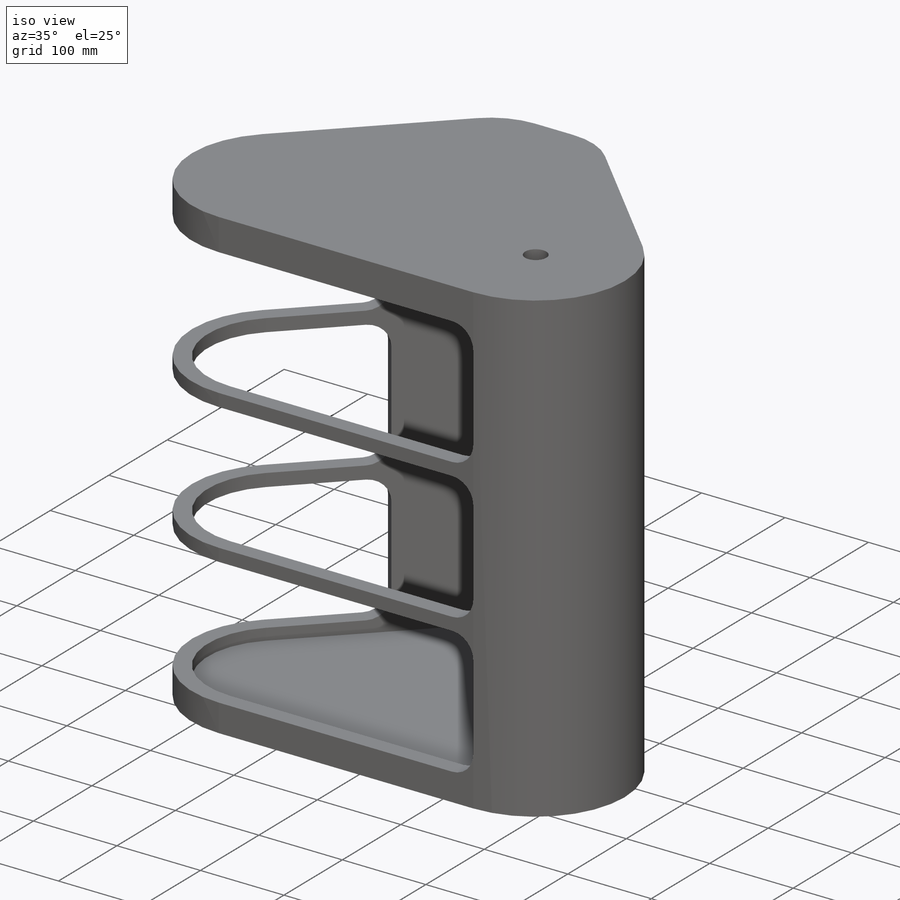
[diagram: iso view]
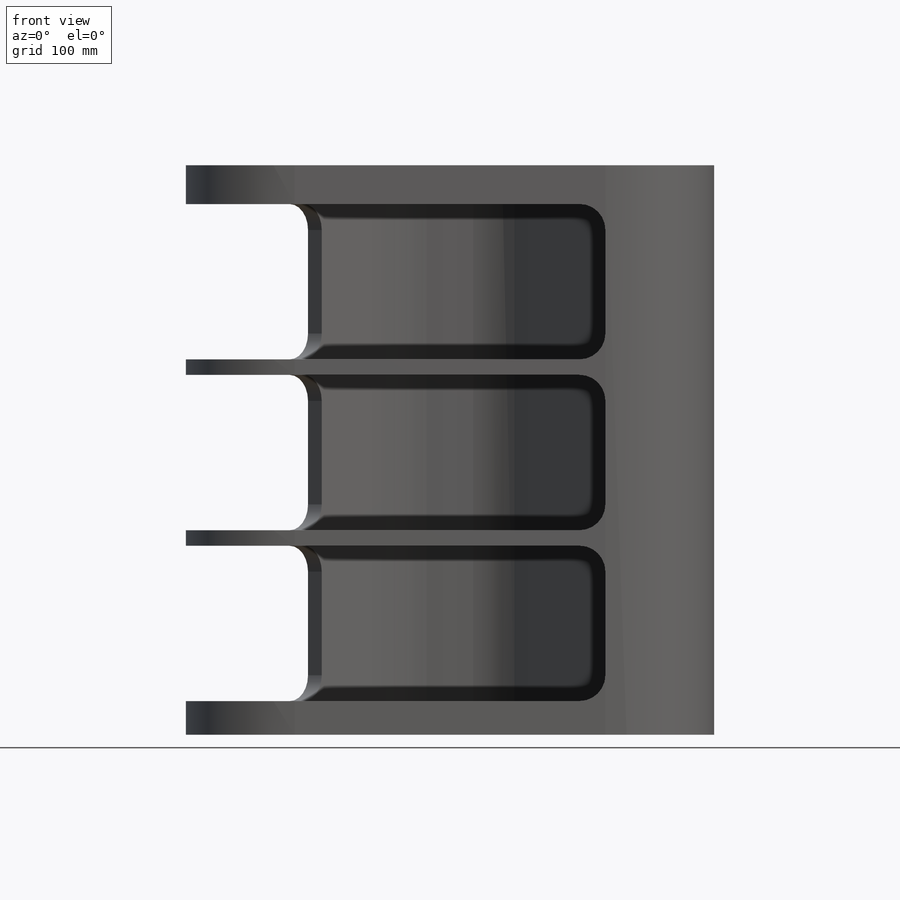
[diagram: front view]
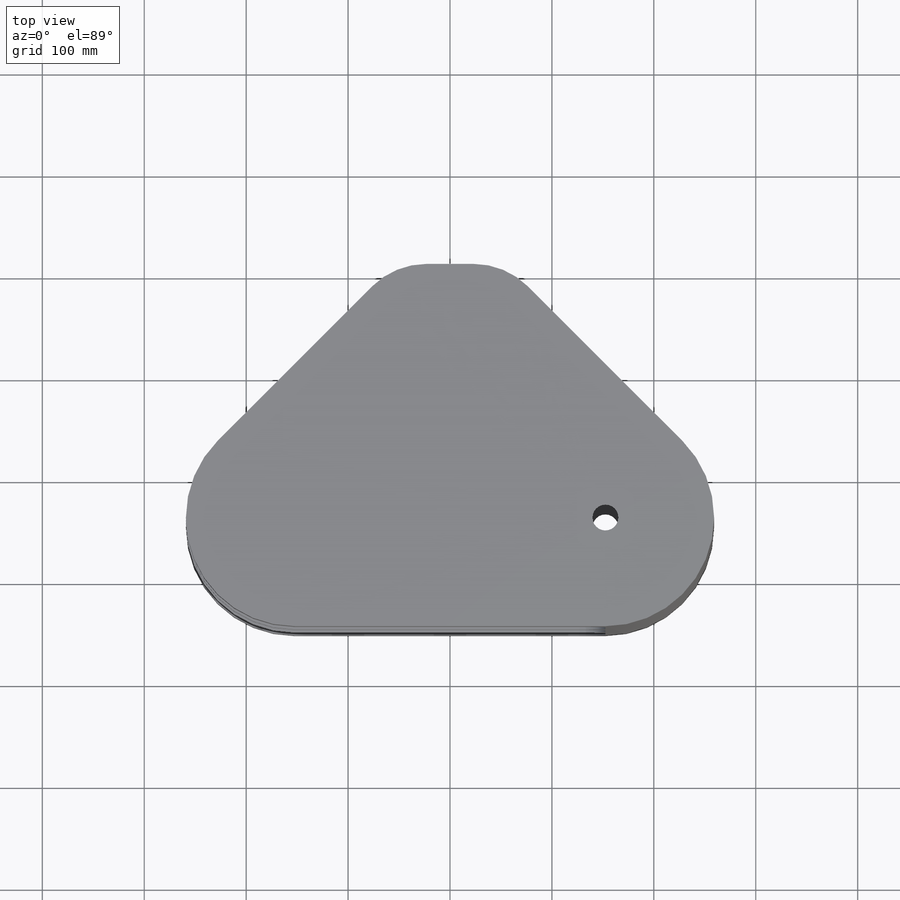
[diagram: top view]
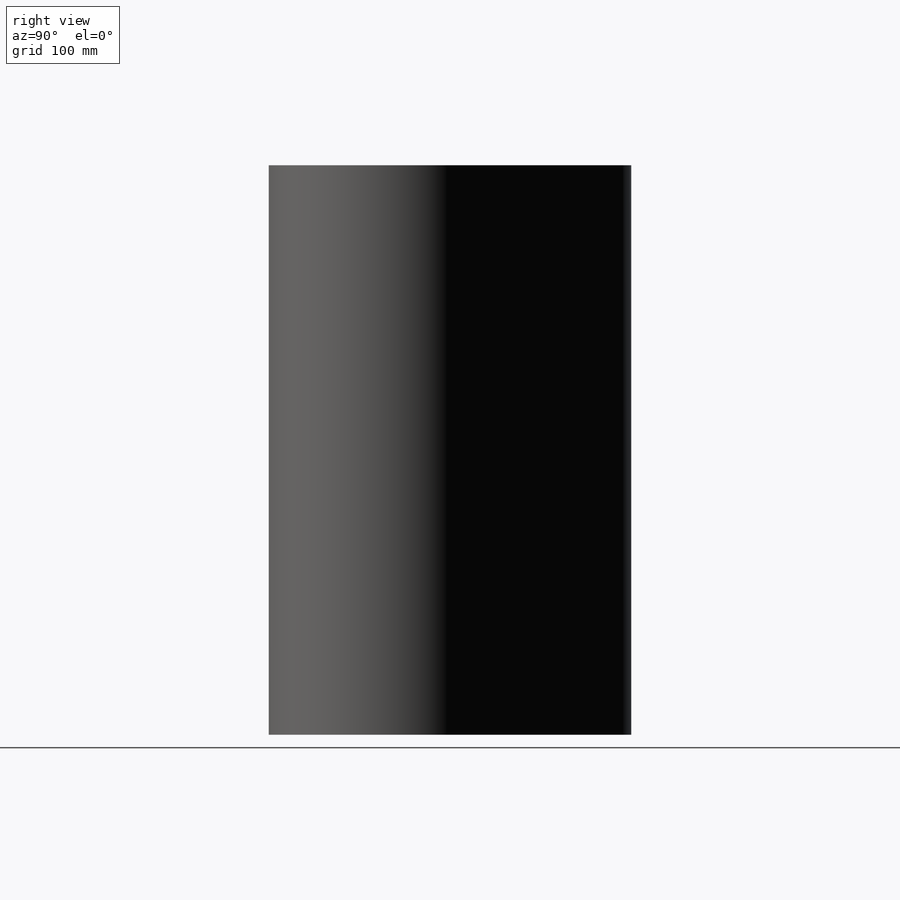
[diagram: right view]
SOLIDWORKS PART (.sldprt)
format: sldprt  version: not decoded by parser v0  size: 455,168 bytes
history: native  units: mm
features: sketch x9, fillet x4, cut_extrude x3, sweep x2, pattern_linear x2, material x1, extrude x1, shell x1 (+13 scaffold rows collapsed)
feature tree (36):
  scaffold x13  (default folders/planes/origin — collapsed)
  material  "Material <not specified>"
  sketch  "Sketch1"  dims[D1=508.0mm D2=508.0mm D3=~718.42049mm]
  extrude  "Boss-Extrude1"  Depth=558.8mm
  sketch  "Sketch2"  dims[c1.D1=127.0mm c1.D2=355.6mm c1.D3=254.0mm c1.D4=863.6mm c2.D3=1270.0mm]
  cut_extrude  "Cut-Extrude1"  [1 undecoded]
  fillet  "Fillet1"  Radius=213.36mm
  fillet  "Fillet2"  Radius=76.2mm
  sketch  "Sketch3"  dims[D1=0.0mm]
  sketch  "Sketch4"  dims[D1=152.4mm D2=457.2mm]
  sketch  "Sketch7"  dims[D1=152.4mm D2=38.1mm D3=20.32mm]
  fillet  "Fillet5"  Radius=106.68mm
  sketch  "Sketch8"
  shell  "Shell1"  Thickness=19.05mm
  sweep  "Cut-Sweep1"
  cut_extrude  "Cut-Extrude2"  [1 undecoded]
  sketch  "Sketch7<2>"  dims[D1=152.4mm]
  fillet  "Fillet6"  Radius=25.4mm
  pattern_linear  "LPattern1"  Count1=3 Count2=1 Spacing1=167.64mm Spacing2=2.54mm
  sketch  "Sketch9"
  sweep  "Block1-1"
  pattern_linear  "Block1"  [2 undecoded]
  sketch  "Sketch10"  dims[D1=25.4mm]
  cut_extrude  "Cut-Extrude3"  [1 undecoded]
decode coverage: 14 of 22 modeling features carry decoded parameters
note: ~ marks probable driven/reference dimensions
note: 5 parameter values undecoded
summary: no parameter record found for 3 features
note: suppression state not decoded; provenance and decode notes live in map.json
